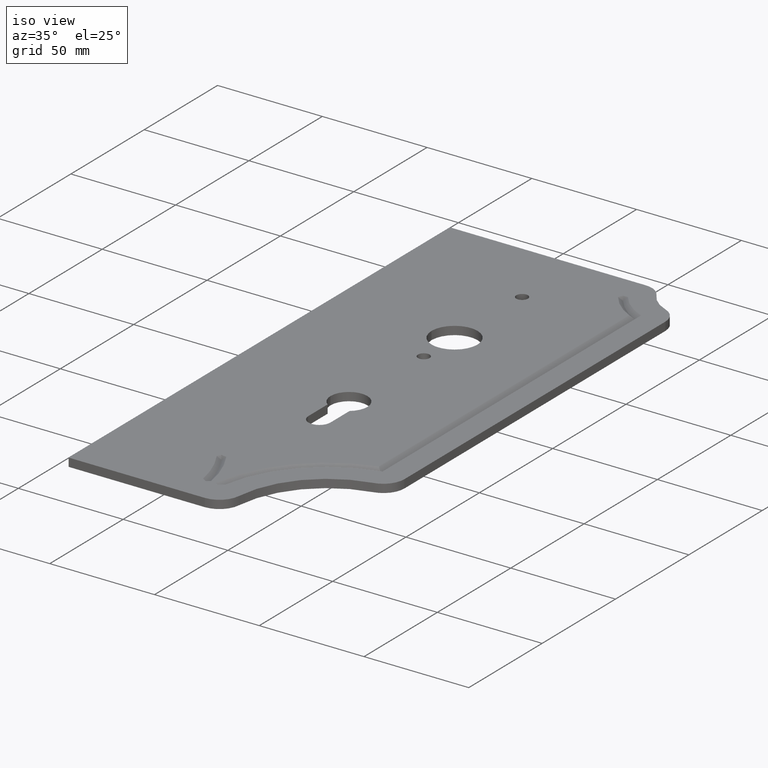
[diagram: clean part render]
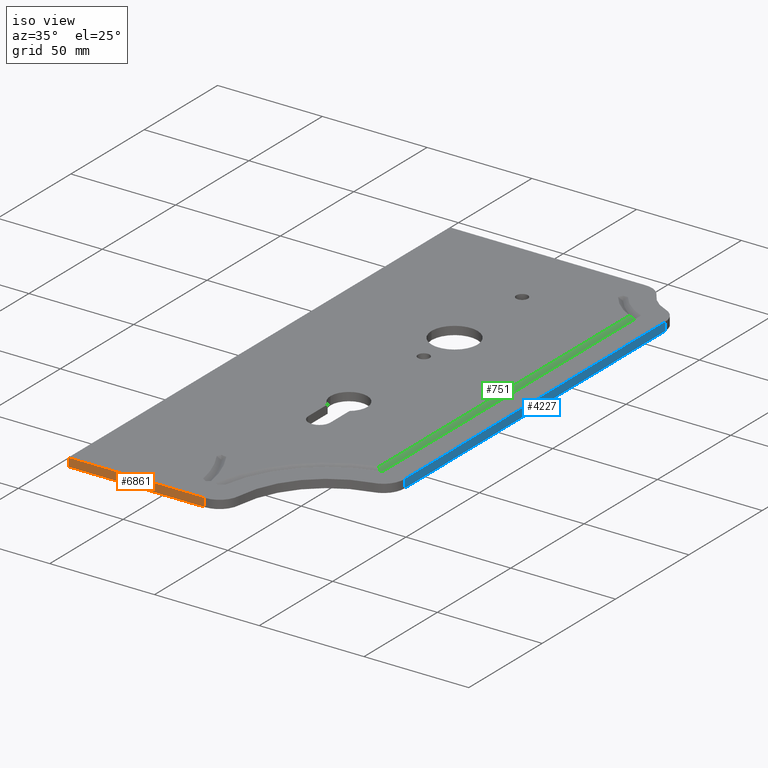
[diagram: same view with three faces highlighted in distinct colors, each labeled with its STEP entity id]
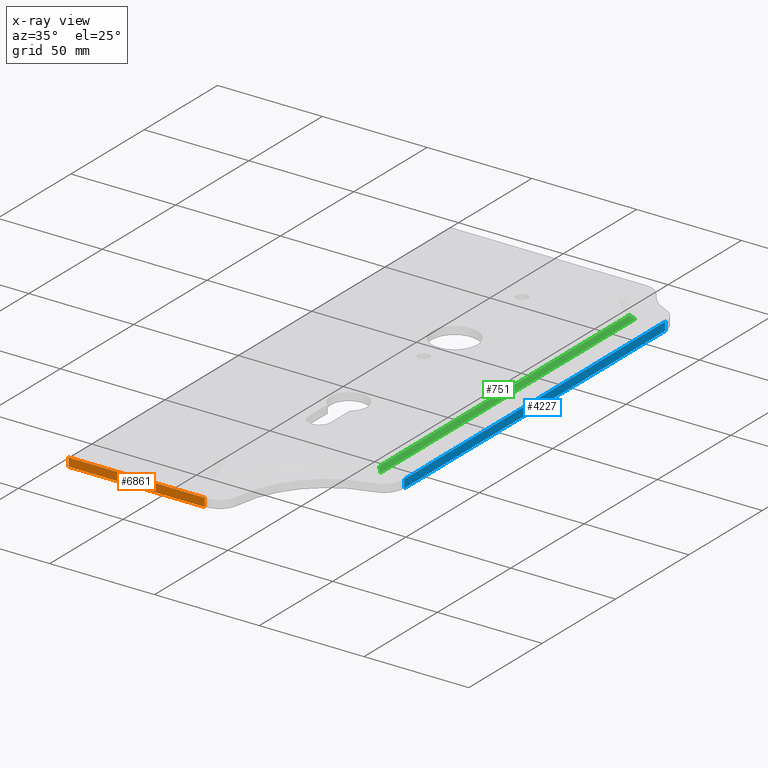
[diagram: x-ray of the same camera — body ghosted, the three highlighted faces saturated]
A machine part, iso view with three faces highlighted in distinct colors.
The next image is the same camera in x-ray (body ghosted, the three faces saturated) — at least one of them is partly hidden behind the body in this view.
Their STEP definitions:

[orange] entity #6861 — the highlighted planar face has unit normal (-0, 1, 0).
#416 = CARTESIAN_POINT ( 'NONE',  ( 124.9841266618795856, -130.0000000000000000, 4.000000000000000000 ) ) ;
#869 = EDGE_CURVE ( 'NONE', #5183, #3639, #2863, .T. ) ;
#880 = FACE_OUTER_BOUND ( 'NONE', #3056, .T. ) ;
#932 = VERTEX_POINT ( 'NONE', #3186 ) ;
#1107 = EDGE_CURVE ( 'NONE', #932, #3639, #1297, .T. ) ;
#1297 = LINE ( 'NONE', #5775, #1932 ) ;
#1490 = DIRECTION ( 'NONE',  ( 1.000000000000000000, 3.700743415417188632E-16, 0.000000000000000000 ) ) ;
#1589 = ORIENTED_EDGE ( 'NONE', *, *, #6669, .F. ) ;
#1686 = ORIENTED_EDGE ( 'NONE', *, *, #1107, .T. ) ;
#1932 = VECTOR ( 'NONE', #1490, 1000.000000000000000 ) ;
#2100 = ORIENTED_EDGE ( 'NONE', *, *, #869, .F. ) ;
#2125 = VECTOR ( 'NONE', #3237, 1000.000000000000000 ) ;
#2603 = CARTESIAN_POINT ( 'NONE',  ( 124.9841266618795856, -130.0000000000000000, 4.000000000000000000 ) ) ;
#2814 = CARTESIAN_POINT ( 'NONE',  ( -14.99999999999998579, -130.0000000000000000, 4.000000000000000000 ) ) ;
#2863 = LINE ( 'NONE', #2603, #2125 ) ;
#3056 = EDGE_LOOP ( 'NONE', ( #1589, #6741, #1686, #2100 ) ) ;
#3113 = DIRECTION ( 'NONE',  ( 1.000000000000000000, 3.700743415417188632E-16, 0.000000000000000000 ) ) ;
#3186 = CARTESIAN_POINT ( 'NONE',  ( 60.00000000000001421, -129.9999999999999716, 0.000000000000000000 ) ) ;
#3237 = DIRECTION ( 'NONE',  ( -0.000000000000000000, 0.000000000000000000, -1.000000000000000000 ) ) ;
#3613 = AXIS2_PLACEMENT_3D ( 'NONE', #2814, #5218, #7667 ) ;
#3639 = VERTEX_POINT ( 'NONE', #3708 ) ;
#3708 = CARTESIAN_POINT ( 'NONE',  ( 124.9841266618795856, -130.0000000000000000, 0.000000000000000000 ) ) ;
#3758 = VECTOR ( 'NONE', #3113, 1000.000000000000000 ) ;
#4230 = LINE ( 'NONE', #4289, #3758 ) ;
#4289 = CARTESIAN_POINT ( 'NONE',  ( -14.99999999999998579, -130.0000000000000000, 4.000000000000000000 ) ) ;
#4598 = CARTESIAN_POINT ( 'NONE',  ( 60.00000000000001421, -130.0000000000000000, 4.000000000000000000 ) ) ;
#4979 = VECTOR ( 'NONE', #6476, 1000.000000000000000 ) ;
#5183 = VERTEX_POINT ( 'NONE', #416 ) ;
#5197 = CARTESIAN_POINT ( 'NONE',  ( 60.00000000000001421, -129.9999999999999716, 4.000000000000000000 ) ) ;
#5218 = DIRECTION ( 'NONE',  ( -3.700743415417188632E-16, 1.000000000000000000, 0.000000000000000000 ) ) ;
#5775 = CARTESIAN_POINT ( 'NONE',  ( -14.99999999999998579, -130.0000000000000000, 0.000000000000000000 ) ) ;
#6313 = EDGE_CURVE ( 'NONE', #6845, #932, #6854, .T. ) ;
#6476 = DIRECTION ( 'NONE',  ( 0.000000000000000000, 0.000000000000000000, -1.000000000000000000 ) ) ;
#6669 = EDGE_CURVE ( 'NONE', #6845, #5183, #4230, .T. ) ;
#6741 = ORIENTED_EDGE ( 'NONE', *, *, #6313, .T. ) ;
#6845 = VERTEX_POINT ( 'NONE', #4598 ) ;
#6854 = LINE ( 'NONE', #5197, #4979 ) ;
#6861 = ADVANCED_FACE ( 'NONE', ( #880 ), #7590, .F. ) ;
#7590 = PLANE ( 'NONE',  #3613 ) ;
#7667 = DIRECTION ( 'NONE',  ( -1.000000000000000000, -3.700743415417188632E-16, 0.000000000000000000 ) ) ;

[blue] entity #4227 — the highlighted planar face has unit normal (-1, -0, 0).
#357 = ORIENTED_EDGE ( 'NONE', *, *, #6616, .F. ) ;
#488 = VERTEX_POINT ( 'NONE', #4521 ) ;
#498 = LINE ( 'NONE', #1292, #7415 ) ;
#527 = LINE ( 'NONE', #2502, #6691 ) ;
#637 = FACE_OUTER_BOUND ( 'NONE', #2875, .T. ) ;
#739 = VERTEX_POINT ( 'NONE', #6474 ) ;
#860 = AXIS2_PLACEMENT_3D ( 'NONE', #7276, #1807, #2425 ) ;
#1119 = CARTESIAN_POINT ( 'NONE',  ( 178.9999999999999716, 106.7736697412874491, 4.000000000000000000 ) ) ;
#1292 = CARTESIAN_POINT ( 'NONE',  ( 178.9999999999999716, 114.9223021168833014, 0.000000000000000000 ) ) ;
#1807 = DIRECTION ( 'NONE',  ( -1.000000000000000000, -1.423079169099819574E-16, 0.000000000000000000 ) ) ;
#2075 = VECTOR ( 'NONE', #6716, 1000.000000000000000 ) ;
#2425 = DIRECTION ( 'NONE',  ( -1.423079169099819574E-16, 1.000000000000000000, 0.000000000000000000 ) ) ;
#2502 = CARTESIAN_POINT ( 'NONE',  ( 178.9999999999999716, 114.9223021168833014, 4.000000000000000000 ) ) ;
#2875 = EDGE_LOOP ( 'NONE', ( #4629, #4222, #6030, #357 ) ) ;
#2969 = CARTESIAN_POINT ( 'NONE',  ( 178.9999999999999716, 106.7736697412874491, 4.000000000000000000 ) ) ;
#3501 = EDGE_CURVE ( 'NONE', #4841, #6847, #527, .T. ) ;
#3570 = LINE ( 'NONE', #6041, #2075 ) ;
#4222 = ORIENTED_EDGE ( 'NONE', *, *, #6963, .F. ) ;
#4227 = ADVANCED_FACE ( 'NONE', ( #637 ), #4869, .F. ) ;
#4322 = DIRECTION ( 'NONE',  ( 1.423079169099819574E-16, -1.000000000000000000, 0.000000000000000000 ) ) ;
#4521 = CARTESIAN_POINT ( 'NONE',  ( 178.9999999999999716, 106.7736697412874491, 0.000000000000000000 ) ) ;
#4629 = ORIENTED_EDGE ( 'NONE', *, *, #6719, .F. ) ;
#4841 = VERTEX_POINT ( 'NONE', #2969 ) ;
#4869 = PLANE ( 'NONE',  #860 ) ;
#6030 = ORIENTED_EDGE ( 'NONE', *, *, #3501, .T. ) ;
#6041 = CARTESIAN_POINT ( 'NONE',  ( 179.0000000000000000, -71.08232937219540304, 4.000000000000000000 ) ) ;
#6096 = LINE ( 'NONE', #1119, #6364 ) ;
#6364 = VECTOR ( 'NONE', #7058, 1000.000000000000000 ) ;
#6474 = CARTESIAN_POINT ( 'NONE',  ( 179.0000000000000000, -71.08232937219540304, 0.000000000000000000 ) ) ;
#6495 = CARTESIAN_POINT ( 'NONE',  ( 179.0000000000000000, -71.08232937219540304, 4.000000000000000000 ) ) ;
#6616 = EDGE_CURVE ( 'NONE', #739, #6847, #3570, .T. ) ;
#6691 = VECTOR ( 'NONE', #4322, 1000.000000000000000 ) ;
#6716 = DIRECTION ( 'NONE',  ( 0.000000000000000000, -0.000000000000000000, 1.000000000000000000 ) ) ;
#6719 = EDGE_CURVE ( 'NONE', #488, #739, #498, .T. ) ;
#6847 = VERTEX_POINT ( 'NONE', #6495 ) ;
#6963 = EDGE_CURVE ( 'NONE', #4841, #488, #6096, .T. ) ;
#7058 = DIRECTION ( 'NONE',  ( -0.000000000000000000, 0.000000000000000000, -1.000000000000000000 ) ) ;
#7263 = DIRECTION ( 'NONE',  ( 1.423079169099819574E-16, -1.000000000000000000, 0.000000000000000000 ) ) ;
#7276 = CARTESIAN_POINT ( 'NONE',  ( 178.9999999999999716, 114.9223021168833014, 4.000000000000000000 ) ) ;
#7415 = VECTOR ( 'NONE', #7263, 1000.000000000000000 ) ;

[green] entity #751 — the highlighted face is a freeform B-spline surface patch.
#25 = EDGE_CURVE ( 'NONE', #7533, #768, #4134, .T. ) ;
#27 = CARTESIAN_POINT ( 'NONE',  ( 164.7198316887067335, -67.67790265481291101, 3.472140804180518625 ) ) ;
#233 = ORIENTED_EDGE ( 'NONE', *, *, #25, .T. ) ;
#574 = CARTESIAN_POINT ( 'NONE',  ( 164.7198316887067051, 106.8022525146607222, 3.472140804180518625 ) ) ;
#640 = CARTESIAN_POINT ( 'NONE',  ( 164.0941429350912131, -67.18769434212320846, 3.999999999999977351 ) ) ;
#687 = CARTESIAN_POINT ( 'NONE',  ( 165.1467470768789383, -68.01237801638465896, 3.113750917927586848 ) ) ;
#751 = ADVANCED_FACE ( 'NONE', ( #5293 ), #2616, .T. ) ;
#768 = VERTEX_POINT ( 'NONE', #1316 ) ;
#1003 = CARTESIAN_POINT ( 'NONE',  ( 164.7395678266014158, 103.9357155389367051, 3.453924139820980788 ) ) ;
#1030 = CARTESIAN_POINT ( 'NONE',  ( 164.5776144079381709, -67.56647969437403844, 3.591772799435837715 ) ) ;
#1202 = CARTESIAN_POINT ( 'NONE',  ( 164.8620489725998084, -67.78932561769917697, 3.352508806296884192 ) ) ;
#1228 = CARTESIAN_POINT ( 'NONE',  ( 164.2269885716983993, 107.1883802681372515, 3.887653813004594561 ) ) ;
#1260 = CARTESIAN_POINT ( 'NONE',  ( 164.8620489725997800, 106.6908295517744421, 3.352508806296884192 ) ) ;
#1290 = CARTESIAN_POINT ( 'NONE',  ( 165.1467470768789099, 106.4677771530889743, 3.113750917927586848 ) ) ;
#1316 = CARTESIAN_POINT ( 'NONE',  ( 164.0941432479718003, 103.5160140191359943, 3.999999710036759026 ) ) ;
#1444 = CARTESIAN_POINT ( 'NONE',  ( 164.0941501642548133, -67.18769429800771320, 3.999998456407919623 ) ) ;
#1622 = CARTESIAN_POINT ( 'NONE',  ( 164.0941501642548133, -67.18769429800771320, 3.999998456407919623 ) ) ;
#1630 = EDGE_LOOP ( 'NONE', ( #4678, #3289, #7560, #233 ) ) ;
#1764 = CARTESIAN_POINT ( 'NONE',  ( 165.0043534632107196, 106.5793382650486336, 3.233043937416319569 ) ) ;
#1789 = B_SPLINE_CURVE_WITH_KNOTS ( 'NONE', 1,
 ( #2124, #7523 ),
 .UNSPECIFIED., .F., .F.,
 ( 2, 2 ),
 ( 0.000000000000000000, 0.9487631663378248703 ),
 .UNSPECIFIED. ) ;
#1826 = B_SPLINE_CURVE_WITH_KNOTS ( 'NONE', 3,
 ( #1622, #6939, #2824, #6307, #4607, #1030, #5814, #2222, #3351, #7019, #4023, #7577, #2725 ),
 .UNSPECIFIED., .F., .F.,
 ( 4, 3, 3, 3, 4 ),
 ( 0.4415097855441510455, 0.4999835763406213496, 0.6249794806641635336, 0.7499753895825261862, 1.000000000000000000 ),
 .UNSPECIFIED. ) ;
#1844 = CARTESIAN_POINT ( 'NONE',  ( 164.0941429350904741, 107.2924608273504106, 4.000000000000594191 ) ) ;
#2124 = CARTESIAN_POINT ( 'NONE',  ( 166.0023075073470977, -68.68268387149156240, 2.400000000000007017 ) ) ;
#2217 = CARTESIAN_POINT ( 'NONE',  ( 166.0023075073470693, 104.7568341896148922, 2.400000000000006128 ) ) ;
#2222 = CARTESIAN_POINT ( 'NONE',  ( 164.8620489725998084, -67.78932561769860854, 3.352508806296884192 ) ) ;
#2243 = LINE ( 'NONE', #640, #2724 ) ;
#2289 = CARTESIAN_POINT ( 'NONE',  ( 165.7167527521013142, 106.0211948569243248, 2.637203667947813912 ) ) ;
#2616 = B_SPLINE_SURFACE_WITH_KNOTS ( 'NONE', 3, 1, ( 
 ( #4044, #6444 ),
 ( #5881, #2289 ),
 ( #4829, #4147 ),
 ( #687, #1290 ),
 ( #3596, #1764 ),
 ( #1202, #1260 ),
 ( #27, #574 ),
 ( #6584, #7138 ),
 ( #4752, #3001 ),
 ( #5956, #4174 ),
 ( #6014, #1228 ),
 ( #5431, #7163 ),
 ( #7775, #1844 ) ),
 .UNSPECIFIED., .F., .F., .F.,
 ( 4, 3, 3, 3, 4 ),
 ( 2, 2 ),
 ( 0.000000000000000000, 0.001300284202374203842, 0.001950341032606115691, 0.002600397838942090662, 0.002904503657842977260 ),
 ( 0.000000000000000000, 1.000000000000000000 ),
 .UNSPECIFIED. ) ;
#2724 = VECTOR ( 'NONE', #3557, 1000.000000000000000 ) ;
#2725 = CARTESIAN_POINT ( 'NONE',  ( 166.0023075073470977, -68.68268387149156240, 2.400000000000007017 ) ) ;
#2792 = CARTESIAN_POINT ( 'NONE',  ( 164.0941432479718003, 103.5160140191359943, 3.999999710036759026 ) ) ;
#2824 = CARTESIAN_POINT ( 'NONE',  ( 164.2269897886629622, -67.29177585479089885, 3.887652785235923503 ) ) ;
#3001 = CARTESIAN_POINT ( 'NONE',  ( 164.4354842121307456, 107.0250302070904667, 3.711572026615935105 ) ) ;
#3226 = CARTESIAN_POINT ( 'NONE',  ( 166.0023075073470693, 104.7568341896148922, 2.400000000000006128 ) ) ;
#3274 = EDGE_CURVE ( 'NONE', #3579, #4871, #1826, .T. ) ;
#3289 = ORIENTED_EDGE ( 'NONE', *, *, #3274, .T. ) ;
#3351 = CARTESIAN_POINT ( 'NONE',  ( 165.0043534632107480, -67.90081690442443119, 3.233043937416319569 ) ) ;
#3557 = DIRECTION ( 'NONE',  ( -9.347942410577991442E-17, 1.000000000000000000, 0.000000000000000000 ) ) ;
#3579 = VERTEX_POINT ( 'NONE', #1444 ) ;
#3596 = CARTESIAN_POINT ( 'NONE',  ( 165.0043534632107480, -67.90081690442499962, 3.233043937416319569 ) ) ;
#4023 = CARTESIAN_POINT ( 'NONE',  ( 165.4315712549729938, -68.23552919011022766, 2.875133922734220082 ) ) ;
#4044 = CARTESIAN_POINT ( 'NONE',  ( 166.0023075073470693, -68.68268387149214504, 2.400000000000006128 ) ) ;
#4134 = B_SPLINE_CURVE_WITH_KNOTS ( 'NONE', 3,
 ( #2217, #6325, #1003, #2792 ),
 .UNSPECIFIED., .F., .F.,
 ( 4, 4 ),
 ( 0.000000000000000000, 0.5659928480475244772 ),
 .UNSPECIFIED. ) ;
#4147 = CARTESIAN_POINT ( 'NONE',  ( 165.4315712549729653, 106.2446259793628371, 2.875133922734220082 ) ) ;
#4174 = CARTESIAN_POINT ( 'NONE',  ( 164.2934392336677547, 107.1363181738566084, 3.831533928473633832 ) ) ;
#4406 = EDGE_CURVE ( 'NONE', #4871, #7533, #1789, .T. ) ;
#4607 = CARTESIAN_POINT ( 'NONE',  ( 164.4354842121307740, -67.45512496238259814, 3.711572026615935105 ) ) ;
#4678 = ORIENTED_EDGE ( 'NONE', *, *, #7743, .F. ) ;
#4752 = CARTESIAN_POINT ( 'NONE',  ( 164.4354842121307740, -67.45512496238316658, 3.711572026615935105 ) ) ;
#4829 = CARTESIAN_POINT ( 'NONE',  ( 165.4315712549729938, -68.23552919011079609, 2.875133922734220082 ) ) ;
#4871 = VERTEX_POINT ( 'NONE', #5509 ) ;
#5293 = FACE_OUTER_BOUND ( 'NONE', #1630, .T. ) ;
#5431 = CARTESIAN_POINT ( 'NONE',  ( 164.1605565342843818, -67.23972739883443239, 3.943809320365459392 ) ) ;
#5509 = CARTESIAN_POINT ( 'NONE',  ( 166.0023075073470977, -68.68268387149156240, 2.400000000000007017 ) ) ;
#5814 = CARTESIAN_POINT ( 'NONE',  ( 164.7198316887067335, -67.67790265481234258, 3.472140804180518625 ) ) ;
#5881 = CARTESIAN_POINT ( 'NONE',  ( 165.7167527521013426, -68.45896031254930847, 2.637203667947813912 ) ) ;
#5956 = CARTESIAN_POINT ( 'NONE',  ( 164.2934392336677831, -67.34383699561702485, 3.831533928473633832 ) ) ;
#6014 = CARTESIAN_POINT ( 'NONE',  ( 164.2269885716984277, -67.29177490133638173, 3.887653813004594561 ) ) ;
#6307 = CARTESIAN_POINT ( 'NONE',  ( 164.2934392336677831, -67.34383699561645642, 3.831533928473633832 ) ) ;
#6325 = CARTESIAN_POINT ( 'NONE',  ( 165.3756239977268478, 104.3493209470367020, 2.920571359410225831 ) ) ;
#6444 = CARTESIAN_POINT ( 'NONE',  ( 166.0023075073470409, 105.7974712979814740, 2.400000000000006128 ) ) ;
#6584 = CARTESIAN_POINT ( 'NONE',  ( 164.5776144079381709, -67.56647969437460688, 3.591772799435837715 ) ) ;
#6939 = CARTESIAN_POINT ( 'NONE',  ( 164.1605589675312729, -67.23972930520957902, 3.943807263523349427 ) ) ;
#7019 = CARTESIAN_POINT ( 'NONE',  ( 165.1467470768789383, -68.01237801638409053, 3.113750917927586848 ) ) ;
#7138 = CARTESIAN_POINT ( 'NONE',  ( 164.5776144079381424, 106.9136754750990121, 3.591772799435837715 ) ) ;
#7163 = CARTESIAN_POINT ( 'NONE',  ( 164.1605565342843533, 107.2404277706391866, 3.943809320365459392 ) ) ;
#7523 = CARTESIAN_POINT ( 'NONE',  ( 166.0023075073470693, 104.7568341896148922, 2.400000000000006128 ) ) ;
#7533 = VERTEX_POINT ( 'NONE', #3226 ) ;
#7560 = ORIENTED_EDGE ( 'NONE', *, *, #4406, .T. ) ;
#7577 = CARTESIAN_POINT ( 'NONE',  ( 165.7167527521013426, -68.45896031254874003, 2.637203667947813912 ) ) ;
#7743 = EDGE_CURVE ( 'NONE', #3579, #768, #2243, .T. ) ;
#7775 = CARTESIAN_POINT ( 'NONE',  ( 164.0941429350905025, -67.18769434212320846, 4.000000000000594191 ) ) ;